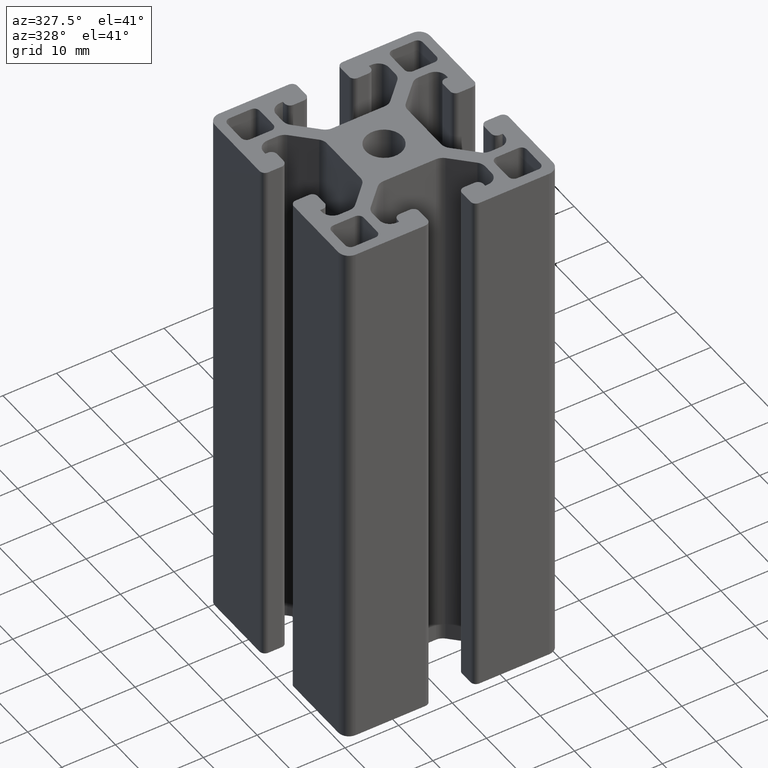
[diagram: clean part render]
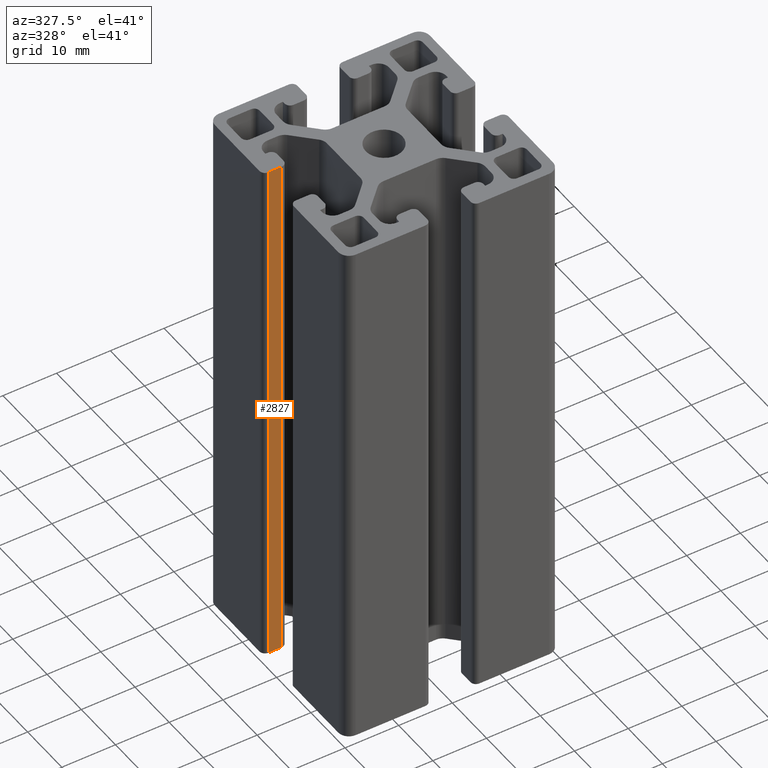
[diagram: same view with one face highlighted and labeled with its STEP entity id]
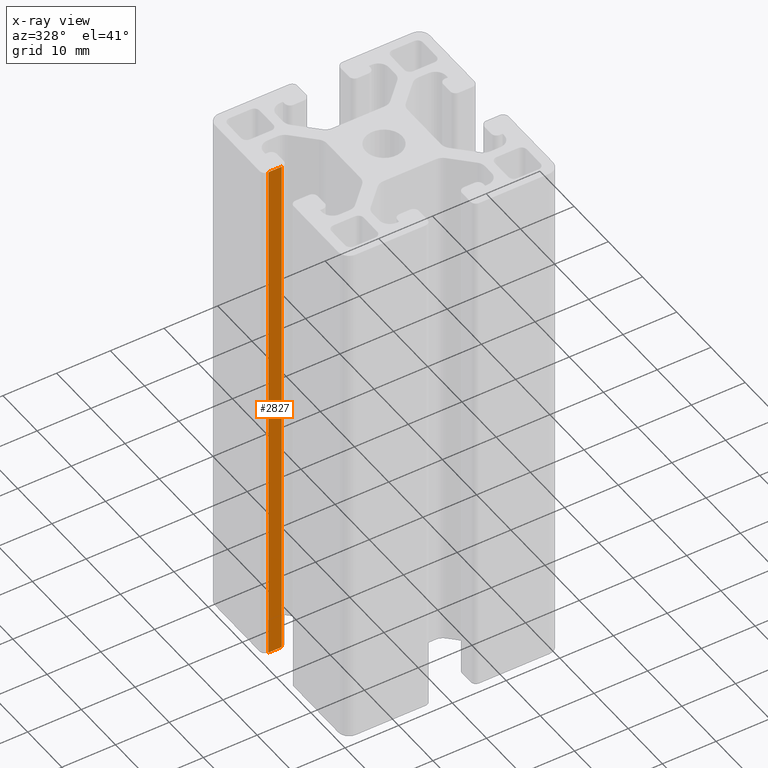
[diagram: x-ray of the same camera — body ghosted, the highlighted face saturated]
A machine part, auxiliary view. The second image highlights one B-rep face of the part: STEP entity #2827.
The next image is the same camera in x-ray: the body ghosted, the highlighted face saturated — about 0% of this face is hidden behind the body in this view.
In plain terms, the highlighted planar face has unit normal (0, 1, 0).
Its self-contained STEP definition (entity closure, byte-faithful):
#260=FACE_OUTER_BOUND('',#408,.T.);
#408=EDGE_LOOP('',(#1960,#1961,#1962,#1963));
#590=LINE('',#4265,#886);
#591=LINE('',#4269,#887);
#592=LINE('',#4271,#888);
#593=LINE('',#4272,#889);
#886=VECTOR('',#3396,100.);
#887=VECTOR('',#3401,2.50000399189769);
#888=VECTOR('',#3402,100.);
#889=VECTOR('',#3403,2.50000399189769);
#1184=VERTEX_POINT('',#4262);
#1185=VERTEX_POINT('',#4264);
#1186=VERTEX_POINT('',#4268);
#1187=VERTEX_POINT('',#4270);
#1499=EDGE_CURVE('',#1185,#1184,#590,.T.);
#1501=EDGE_CURVE('',#1186,#1184,#591,.T.);
#1502=EDGE_CURVE('',#1187,#1186,#592,.T.);
#1503=EDGE_CURVE('',#1185,#1187,#593,.T.);
#1960=ORIENTED_EDGE('',*,*,#1501,.F.);
#1961=ORIENTED_EDGE('',*,*,#1502,.F.);
#1962=ORIENTED_EDGE('',*,*,#1503,.F.);
#1963=ORIENTED_EDGE('',*,*,#1499,.T.);
#2735=PLANE('',#3004);
#2827=ADVANCED_FACE('',(#260),#2735,.F.);
#3004=AXIS2_PLACEMENT_3D('',#4267,#3399,#3400);
#3396=DIRECTION('',(0.,0.,1.));
#3399=DIRECTION('center_axis',(1.77635400299087E-15,1.,0.));
#3400=DIRECTION('ref_axis',(-1.,1.77635683940025E-15,0.));
#3401=DIRECTION('',(1.,-1.77635400299087E-15,0.));
#3402=DIRECTION('',(0.,0.,1.));
#3403=DIRECTION('',(-1.,1.77635400299087E-15,0.));
#4262=CARTESIAN_POINT('',(-16.4999980040512,4.,100.));
#4264=CARTESIAN_POINT('',(-16.4999980040512,4.,0.));
#4265=CARTESIAN_POINT('',(-16.4999980040512,4.,0.));
#4267=CARTESIAN_POINT('Origin',(-16.4999980040512,4.,0.));
#4268=CARTESIAN_POINT('',(-19.0000019959488,4.,100.));
#4269=CARTESIAN_POINT('',(-8.24999900202557,3.99999999999998,100.));
#4270=CARTESIAN_POINT('',(-19.0000019959488,4.,0.));
#4271=CARTESIAN_POINT('',(-19.0000019959488,4.,0.));
#4272=CARTESIAN_POINT('',(-8.24999900202557,3.99999999999998,0.));